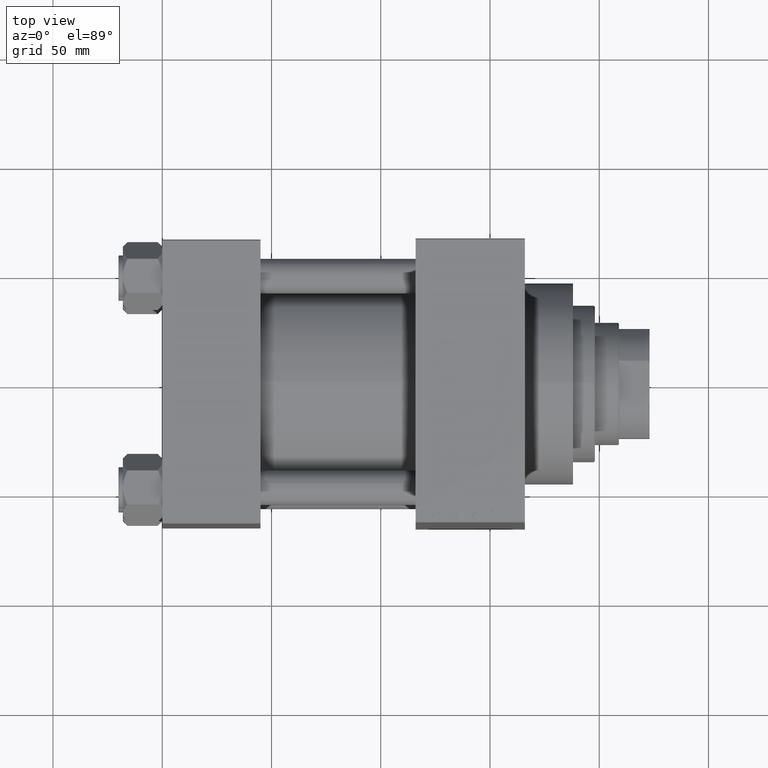
[diagram: clean part render]
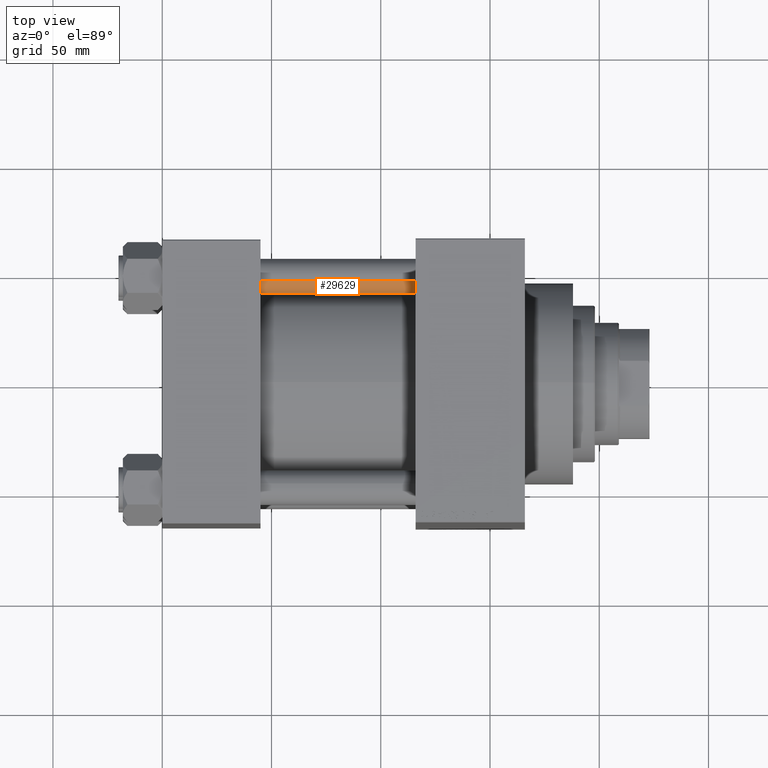
[diagram: same view with one face highlighted and labeled with its STEP entity id]
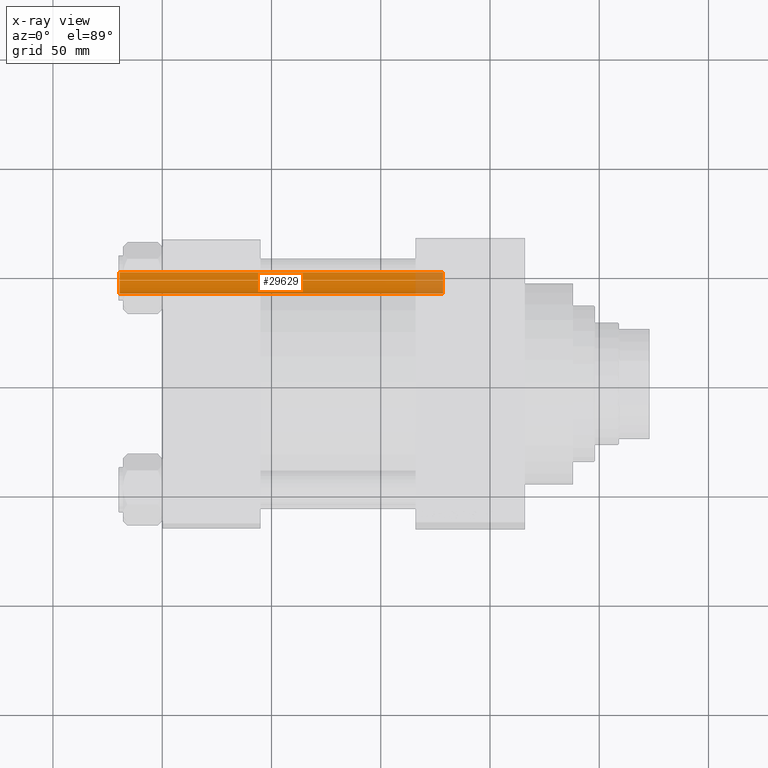
[diagram: x-ray of the same camera — body ghosted, the highlighted face saturated]
A machine part, top view. The second image highlights one B-rep face of the part: STEP entity #29629.
The next image is the same camera in x-ray: the body ghosted, the highlighted face saturated — about 8% of this face is hidden behind the body in this view.
In plain terms, the highlighted cylindrical surface (edge-blend (fillet) strip) has radius 8 mm, axis along (-1, -0, 0).
Its self-contained STEP definition (entity closure, byte-faithful):
#1436 = DIRECTION ( 'NONE',  ( -0.000000000000000000, -0.000000000000000000, 1.000000000000000000 ) ) ;
#1536 = LINE ( 'NONE', #46435, #21106 ) ;
#3842 = CARTESIAN_POINT ( 'NONE',  ( -8.000000000000000000, 0.000000000000000000, 148.5000000000000000 ) ) ;
#4592 = VECTOR ( 'NONE', #43730, 1000.000000000000000 ) ;
#6134 = AXIS2_PLACEMENT_3D ( 'NONE', #14485, #26073, #33588 ) ;
#9609 = DIRECTION ( 'NONE',  ( 1.000000000000000000, 0.000000000000000000, 0.000000000000000000 ) ) ;
#9769 = CARTESIAN_POINT ( 'NONE',  ( 8.000000000000000000, 9.797174393178825657E-16, 148.5000000000000000 ) ) ;
#10643 = CYLINDRICAL_SURFACE ( 'NONE', #6134, 8.000000000000000000 ) ;
#10660 = AXIS2_PLACEMENT_3D ( 'NONE', #20690, #1436, #9609 ) ;
#11152 = DIRECTION ( 'NONE',  ( 1.000000000000000000, 0.000000000000000000, 0.000000000000000000 ) ) ;
#14467 = LINE ( 'NONE', #40345, #4592 ) ;
#14485 = CARTESIAN_POINT ( 'NONE',  ( 0.000000000000000000, 0.000000000000000000, 149.0000000000000000 ) ) ;
#16692 = DIRECTION ( 'NONE',  ( -0.000000000000000000, -0.000000000000000000, -1.000000000000000000 ) ) ;
#17571 = CIRCLE ( 'NONE', #10660, 8.000000000000000000 ) ;
#17806 = VERTEX_POINT ( 'NONE', #9769 ) ;
#20690 = CARTESIAN_POINT ( 'NONE',  ( 0.000000000000000000, 0.000000000000000000, 0.5000000000000281997 ) ) ;
#21106 = VECTOR ( 'NONE', #16692, 1000.000000000000000 ) ;
#21714 = ORIENTED_EDGE ( 'NONE', *, *, #47392, .T. ) ;
#22239 = EDGE_CURVE ( 'NONE', #25292, #39824, #17571, .T. ) ;
#24343 = CIRCLE ( 'NONE', #46750, 8.000000000000000000 ) ;
#25292 = VERTEX_POINT ( 'NONE', #31164 ) ;
#25388 = EDGE_CURVE ( 'NONE', #17806, #39824, #14467, .T. ) ;
#26073 = DIRECTION ( 'NONE',  ( -0.000000000000000000, -0.000000000000000000, -1.000000000000000000 ) ) ;
#27715 = ORIENTED_EDGE ( 'NONE', *, *, #25388, .F. ) ;
#29629 = ADVANCED_FACE ( 'NONE', ( #44463 ), #10643, .T. ) ;
#29971 = CARTESIAN_POINT ( 'NONE',  ( 0.000000000000000000, 0.000000000000000000, 148.5000000000000000 ) ) ;
#30813 = VERTEX_POINT ( 'NONE', #3842 ) ;
#31164 = CARTESIAN_POINT ( 'NONE',  ( -8.000000000000000000, 0.000000000000000000, 0.5000000000000281997 ) ) ;
#31691 = ORIENTED_EDGE ( 'NONE', *, *, #22239, .T. ) ;
#32208 = EDGE_LOOP ( 'NONE', ( #27715, #21714, #38789, #31691 ) ) ;
#33588 = DIRECTION ( 'NONE',  ( -1.000000000000000000, 0.000000000000000000, 0.000000000000000000 ) ) ;
#35500 = CARTESIAN_POINT ( 'NONE',  ( 8.000000000000000000, 9.797174393178825657E-16, 0.5000000000000281997 ) ) ;
#38789 = ORIENTED_EDGE ( 'NONE', *, *, #39433, .T. ) ;
#39433 = EDGE_CURVE ( 'NONE', #30813, #25292, #1536, .T. ) ;
#39824 = VERTEX_POINT ( 'NONE', #35500 ) ;
#40345 = CARTESIAN_POINT ( 'NONE',  ( 8.000000000000000000, 9.797174393178825657E-16, 149.0000000000000000 ) ) ;
#43730 = DIRECTION ( 'NONE',  ( -0.000000000000000000, -0.000000000000000000, -1.000000000000000000 ) ) ;
#44463 = FACE_OUTER_BOUND ( 'NONE', #32208, .T. ) ;
#46435 = CARTESIAN_POINT ( 'NONE',  ( -8.000000000000000000, 0.000000000000000000, 149.0000000000000000 ) ) ;
#46750 = AXIS2_PLACEMENT_3D ( 'NONE', #29971, #47636, #11152 ) ;
#47392 = EDGE_CURVE ( 'NONE', #17806, #30813, #24343, .T. ) ;
#47636 = DIRECTION ( 'NONE',  ( 0.000000000000000000, 0.000000000000000000, -1.000000000000000000 ) ) ;